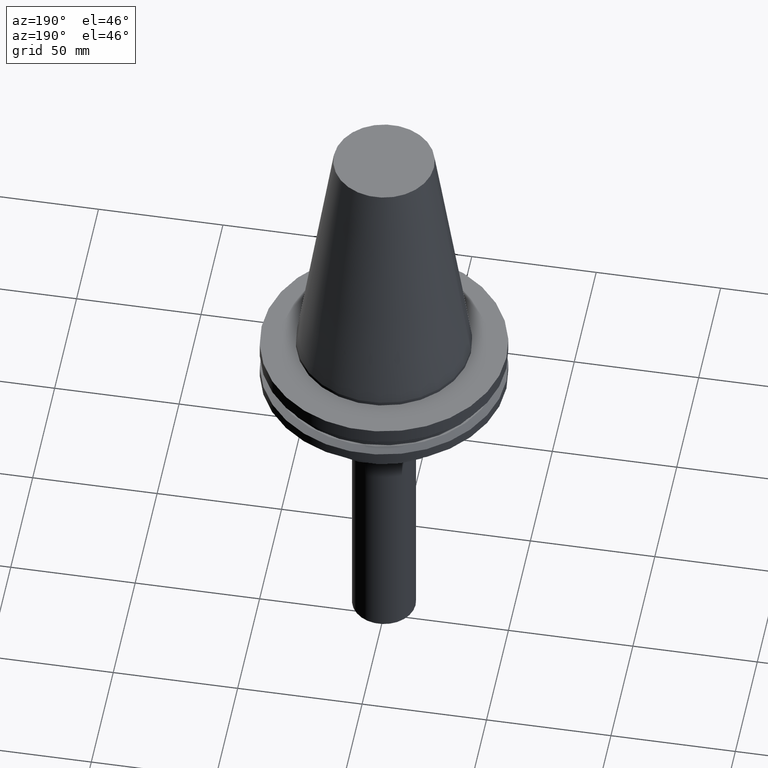
[diagram: clean part render]
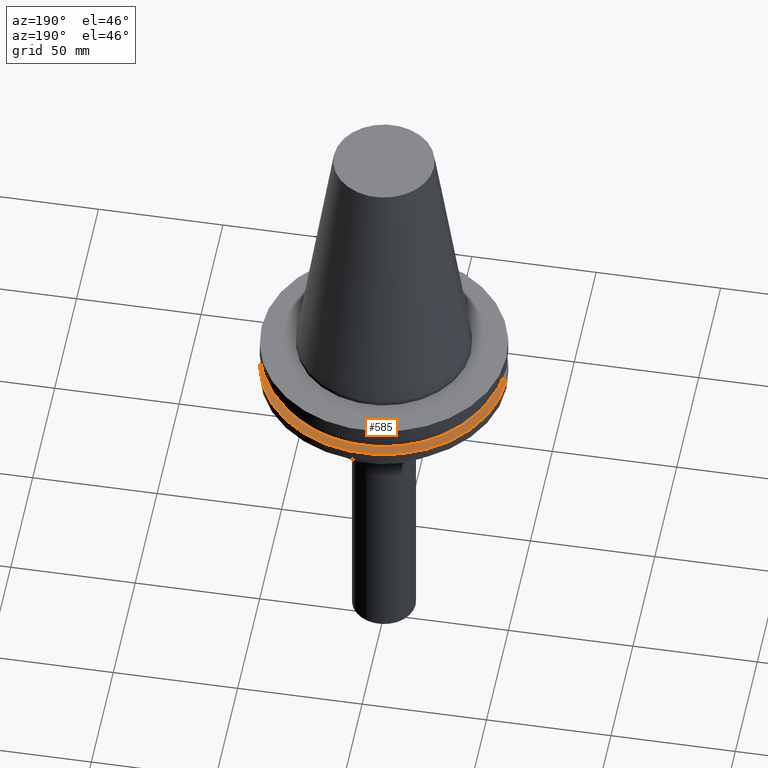
[diagram: same view with one face highlighted and labeled with its STEP entity id]
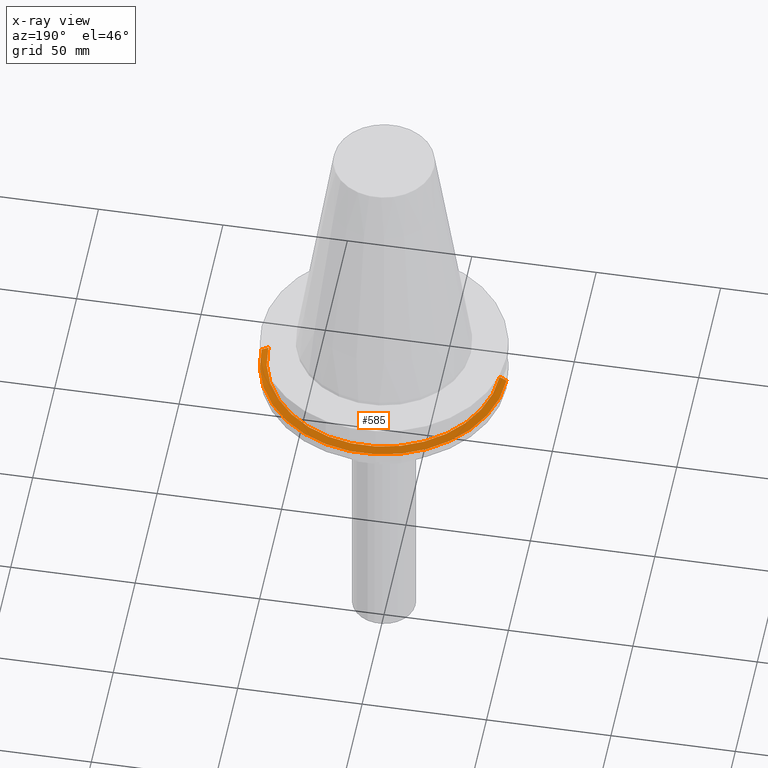
[diagram: x-ray of the same camera — body ghosted, the highlighted face saturated]
A machine part, auxiliary view. The second image highlights one B-rep face of the part: STEP entity #585.
The next image is the same camera in x-ray: the body ghosted, the highlighted face saturated — about 0% of this face is hidden behind the body in this view.
In plain terms, the highlighted conical surface has half-angle 60 deg.
Its self-contained STEP definition (entity closure, byte-faithful):
#50 = EDGE_CURVE ( 'NONE', #179, #498, #277, .T. ) ;
#63 = VERTEX_POINT ( 'NONE', #317 ) ;
#69 = EDGE_LOOP ( 'NONE', ( #615, #492, #468, #336 ) ) ;
#91 = CARTESIAN_POINT ( 'NONE',  ( 0.000000000000000000, 0.000000000000000000, -13.05499999999999794 ) ) ;
#105 = DIRECTION ( 'NONE',  ( -1.000000000000000000, 0.000000000000000000, 0.000000000000000000 ) ) ;
#143 = DIRECTION ( 'NONE',  ( 1.000000000000000000, 0.000000000000000000, 0.000000000000000000 ) ) ;
#179 = VERTEX_POINT ( 'NONE', #369 ) ;
#186 = FACE_OUTER_BOUND ( 'NONE', #69, .T. ) ;
#214 = AXIS2_PLACEMENT_3D ( 'NONE', #252, #451, #105 ) ;
#228 = DIRECTION ( 'NONE',  ( -0.000000000000000000, -0.000000000000000000, 1.000000000000000000 ) ) ;
#235 = EDGE_CURVE ( 'NONE', #498, #445, #660, .T. ) ;
#252 = CARTESIAN_POINT ( 'NONE',  ( 0.000000000000000000, 0.000000000000000000, -14.65761014474876944 ) ) ;
#259 = DIRECTION ( 'NONE',  ( -0.8660254037844169472, 0.000000000000000000, -0.5000000000000375255 ) ) ;
#277 = CIRCLE ( 'NONE', #449, 46.43919780457007818 ) ;
#313 = VECTOR ( 'NONE', #259, 1000.000000000000114 ) ;
#317 = CARTESIAN_POINT ( 'NONE',  ( 49.21499999999998920, 0.000000000000000000, -14.65761014474876944 ) ) ;
#331 = CIRCLE ( 'NONE', #535, 49.21499999999998920 ) ;
#336 = ORIENTED_EDGE ( 'NONE', *, *, #235, .F. ) ;
#369 = CARTESIAN_POINT ( 'NONE',  ( 46.43919780457007818, 5.857130358318725715E-15, -13.05499999999999794 ) ) ;
#391 = CARTESIAN_POINT ( 'NONE',  ( 49.21499999999998920, 6.027099222003697037E-15, -14.65761014474876944 ) ) ;
#445 = VERTEX_POINT ( 'NONE', #484 ) ;
#449 = AXIS2_PLACEMENT_3D ( 'NONE', #91, #833, #513 ) ;
#451 = DIRECTION ( 'NONE',  ( 0.000000000000000000, 0.000000000000000000, -1.000000000000000000 ) ) ;
#468 = ORIENTED_EDGE ( 'NONE', *, *, #774, .T. ) ;
#484 = CARTESIAN_POINT ( 'NONE',  ( -49.21499999999998920, 6.027099222003697037E-15, -14.65761014474876944 ) ) ;
#492 = ORIENTED_EDGE ( 'NONE', *, *, #664, .T. ) ;
#498 = VERTEX_POINT ( 'NONE', #671 ) ;
#513 = DIRECTION ( 'NONE',  ( 1.000000000000000000, 0.000000000000000000, 0.000000000000000000 ) ) ;
#525 = VECTOR ( 'NONE', #793, 1000.000000000000114 ) ;
#535 = AXIS2_PLACEMENT_3D ( 'NONE', #545, #228, #143 ) ;
#545 = CARTESIAN_POINT ( 'NONE',  ( 0.000000000000000000, 0.000000000000000000, -14.65761014474876944 ) ) ;
#585 = ADVANCED_FACE ( 'NONE', ( #186 ), #776, .T. ) ;
#586 = CARTESIAN_POINT ( 'NONE',  ( -49.21499999999998920, 0.000000000000000000, -14.65761014474876944 ) ) ;
#615 = ORIENTED_EDGE ( 'NONE', *, *, #50, .F. ) ;
#660 = LINE ( 'NONE', #586, #313 ) ;
#664 = EDGE_CURVE ( 'NONE', #179, #63, #725, .T. ) ;
#671 = CARTESIAN_POINT ( 'NONE',  ( -46.43919780457007818, 0.000000000000000000, -13.05499999999999794 ) ) ;
#725 = LINE ( 'NONE', #391, #525 ) ;
#774 = EDGE_CURVE ( 'NONE', #63, #445, #331, .T. ) ;
#776 = CONICAL_SURFACE ( 'NONE', #214, 49.21499999999998920, 1.047197551196554333 ) ;
#793 = DIRECTION ( 'NONE',  ( 0.8660254037844169472, 1.060575238724880168E-16, -0.5000000000000375255 ) ) ;
#833 = DIRECTION ( 'NONE',  ( -0.000000000000000000, -0.000000000000000000, 1.000000000000000000 ) ) ;